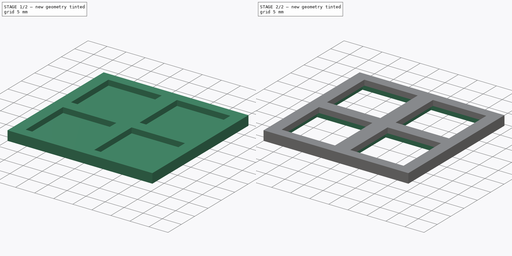
[diagram: build sequence overview — one tinted view per stage of 2, left to right]
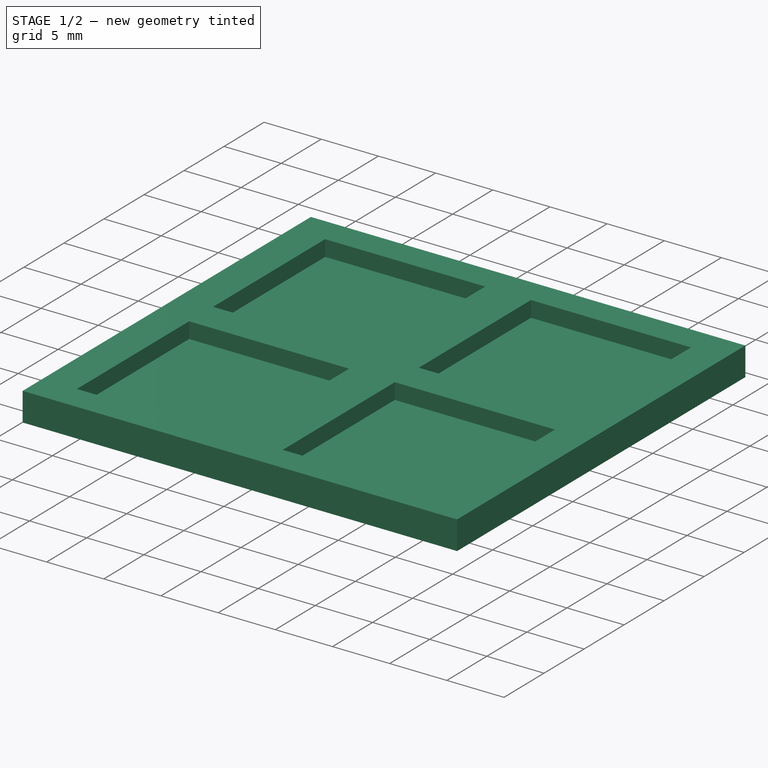
[diagram: stage 1 of 2 — iso view after this stage's code; geometry added in this stage tinted green]
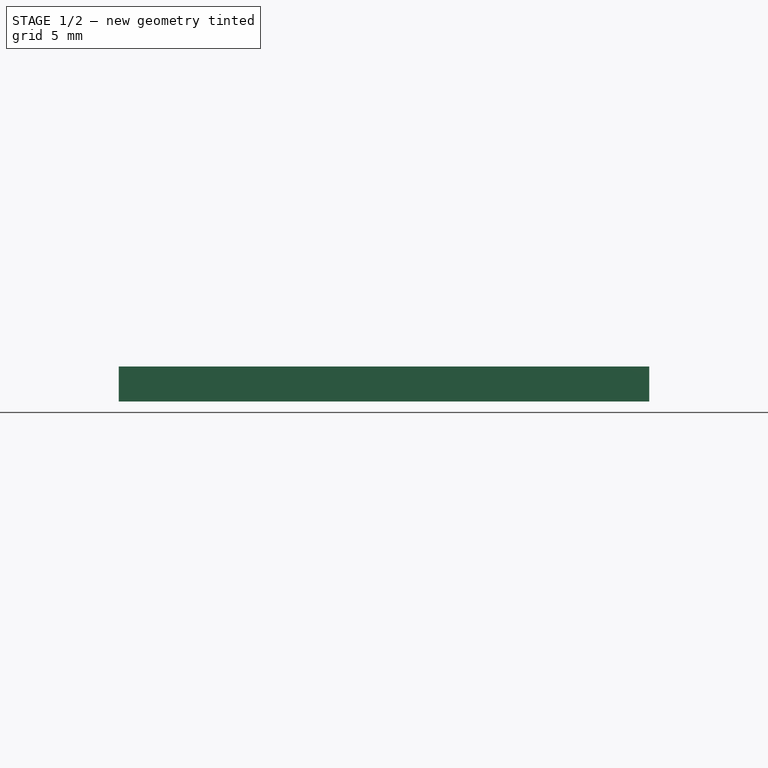
[diagram: stage 1 of 2 — front view after this stage's code; geometry added in this stage tinted green]
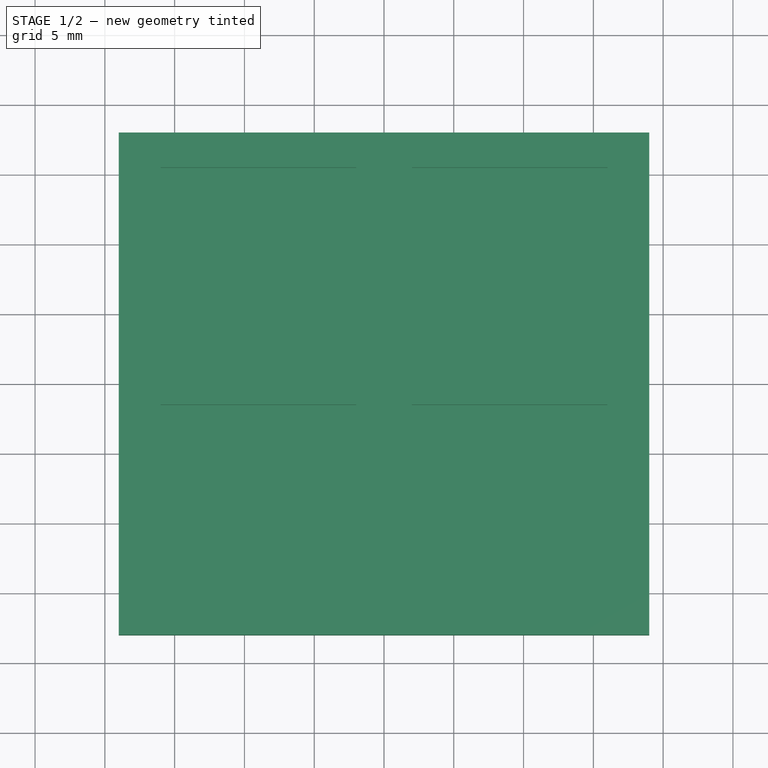
[diagram: stage 1 of 2 — top view after this stage's code; geometry added in this stage tinted green]
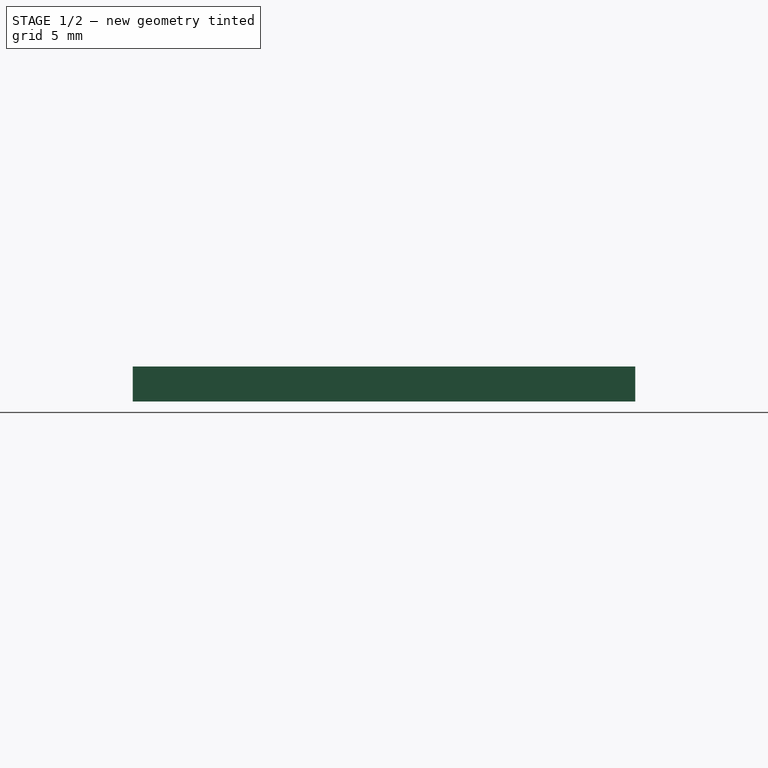
[diagram: stage 1 of 2 — right view after this stage's code; geometry added in this stage tinted green]
FCSTD DOCUMENT  (FreeCAD 0.19R24366 (Git))
Label: kailh_choc_4_button_plate
License: All rights reserved
LicenseURL: http://en.wikipedia.org/wiki/All_rights_reserved
objects: Sketcher::SketchObject×3, PartDesign::Pocket×2, PartDesign::Pad×1, PartDesign::Plane×1, PartDesign::Body×1
note: 11 computed .brp shape members not serialized (recipe doc carries the construction recipe); baked Part::Feature solids carry a one-line shape summary decoded from their .brp

FEATURE [Sketcher::SketchObject] Sketch
  FullyConstrained = true
  MapMode = 5
  Support = -> [XY_Plane]
  sketch-geometry (4):
    g0: LineSegment StartX=-19 StartY=18 StartZ=0 EndX=19 EndY=18 EndZ=0
    g1: LineSegment StartX=19 StartY=18 StartZ=0 EndX=19 EndY=-18 EndZ=0
    g2: LineSegment StartX=19 StartY=-18 StartZ=0 EndX=-19 EndY=-18 EndZ=0
    g3: LineSegment StartX=-19 StartY=-18 StartZ=0 EndX=-19 EndY=18 EndZ=0
  constraints (11):
    c: Coincident(g0,g1)
    c: Coincident(g1,g2)
    c: Coincident(g2,g3)
    c: Coincident(g3,g0)
    c: Horizontal(g0)
    c: Horizontal(g2)
    c: Vertical(g1)
    c: Vertical(g3)
    c: Symmetric(g0,g2,g-1)
    c: Distance(g1) = 36
    c: Distance(g2) = 38
FEATURE [PartDesign::Pad] Pad
  Direction = (1,1,1)
  Length = 2.5
  Length2 = 100
  Profile = -> Sketch
  Type = 0
FEATURE [PartDesign::Plane] DatumPlane
  AttachmentOffset = pos=(0,0,2.5) rot=(0,0,1;0rad)
  Length = 60
  MapMode = 5
  Placement = pos=(0,0,2.5) rot=(0,0,1;0rad)
  ResizeMode = 0
  Support = -> [XY_Plane]
  Width = 60
FEATURE [Sketcher::SketchObject] Sketch001
  FullyConstrained = true
  MapMode = 5
  Placement = pos=(0,0,2.5) rot=(0,0,1;0rad)
  Support = -> [DatumPlane]
  sketch-geometry (20):
    g0: LineSegment StartX=-16 StartY=15.5 StartZ=0 EndX=-2 EndY=15.5 EndZ=0
    g1: LineSegment StartX=-2 StartY=15.5 StartZ=0 EndX=-2 EndY=1.5 EndZ=0
    g2: LineSegment StartX=-2 StartY=1.5 StartZ=0 EndX=-16 EndY=1.5 EndZ=0
    g3: LineSegment StartX=-16 StartY=1.5 StartZ=0 EndX=-16 EndY=15.5 EndZ=0
    g4: LineSegment StartX=2 StartY=15.5 StartZ=0 EndX=16 EndY=15.5 EndZ=0
    g5: LineSegment StartX=16 StartY=15.5 StartZ=0 EndX=16 EndY=1.5 EndZ=0
    g6: LineSegment StartX=16 StartY=1.5 StartZ=0 EndX=2 EndY=1.5 EndZ=0
    g7: LineSegment StartX=2 StartY=1.5 StartZ=0 EndX=2 EndY=15.5 EndZ=0
    g8: LineSegment StartX=2 StartY=-1.5 StartZ=0 EndX=16 EndY=-1.5 EndZ=0
    g9: LineSegment StartX=16 StartY=-1.5 StartZ=0 EndX=16 EndY=-15.5 EndZ=0
    g10: LineSegment StartX=16 StartY=-15.5 StartZ=0 EndX=2 EndY=-15.5 EndZ=0
    g11: LineSegment StartX=2 StartY=-15.5 StartZ=0 EndX=2 EndY=-1.5 EndZ=0
    g12: LineSegment StartX=-16 StartY=-1.5 StartZ=0 EndX=-2 EndY=-1.5 EndZ=0
    g13: LineSegment StartX=-2 StartY=-1.5 StartZ=0 EndX=-2 EndY=-15.5 EndZ=0
    g14: LineSegment StartX=-2 StartY=-15.5 StartZ=0 EndX=-16 EndY=-15.5 EndZ=0
    g15: LineSegment StartX=-16 StartY=-15.5 StartZ=0 EndX=-16 EndY=-1.5 EndZ=0
    g16: LineSegment StartX=-2 StartY=1.5 StartZ=0 EndX=2 EndY=1.5 EndZ=0
    g17: LineSegment StartX=2 StartY=1.5 StartZ=0 EndX=2 EndY=-1.5 EndZ=0
    g18: LineSegment StartX=2 StartY=-1.5 StartZ=0 EndX=-2 EndY=-1.5 EndZ=0
    g19: LineSegment StartX=-2 StartY=-1.5 StartZ=0 EndX=-2 EndY=1.5 EndZ=0
  constraints (55):
    c: Coincident(g0,g1)
    c: Coincident(g1,g2)
    c: Coincident(g2,g3)
    c: Coincident(g3,g0)
    c: Horizontal(g0)
    c: Horizontal(g2)
    c: Vertical(g1)
    c: Vertical(g3)
    c: Coincident(g4,g5)
    c: Coincident(g5,g6)
    c: Coincident(g6,g7)
    c: Coincident(g7,g4)
    c: Horizontal(g4)
    c: Horizontal(g6)
    c: Vertical(g5)
    c: Vertical(g7)
    c: Coincident(g8,g9)
    c: Coincident(g9,g10)
    c: Coincident(g10,g11)
    c: Coincident(g11,g8)
    c: Horizontal(g8)
    c: Horizontal(g10)
    c: Vertical(g9)
    c: Vertical(g11)
    c: Coincident(g12,g13)
    c: Coincident(g13,g14)
    c: Coincident(g14,g15)
    c: Coincident(g15,g12)
    c: Horizontal(g12)
    c: Horizontal(g14)
    c: Vertical(g13)
    c: Vertical(g15)
    c: Equal(g0,g1)
    c: Equal(g1,g4)
    c: Equal(g4,g5)
    c: Equal(g5,g8)
    c: Equal(g8,g9)
    c: Equal(g9,g12)
    c: Equal(g12,g13)
    c: Distance(g5) = 14
    c: Coincident(g16,g17)
    c: Coincident(g17,g18)
    c: Coincident(g18,g19)
    c: Coincident(g19,g16)
    c: Horizontal(g16)
    c: Horizontal(g18)
    c: Vertical(g17)
    c: Vertical(g19)
    c: Symmetric(g18,g16,g-1)
    c: Coincident(g16,g6)
    c: Coincident(g1,g16)
    c: Coincident(g18,g12)
    c: Coincident(g17,g8)
    c: Distance(g17) = 3
    c: Distance(g18) = 4
FEATURE [PartDesign::Pocket] Pocket
  BaseFeature = -> Pad
  Length = 1.4
  Length2 = 100
  Profile = -> Sketch001
  Type = 0
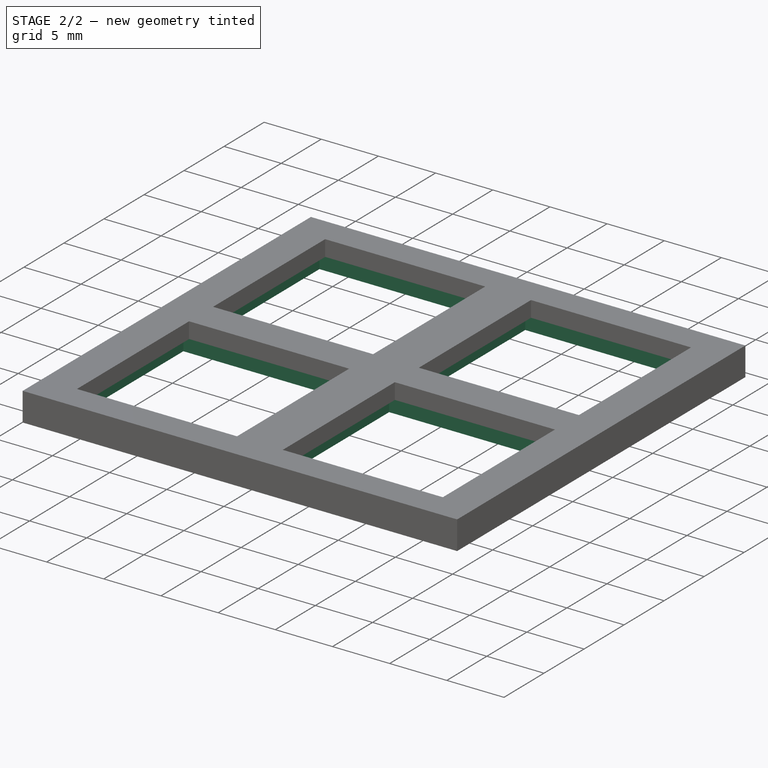
[diagram: stage 2 of 2 — iso view after this stage's code; geometry added in this stage tinted green]
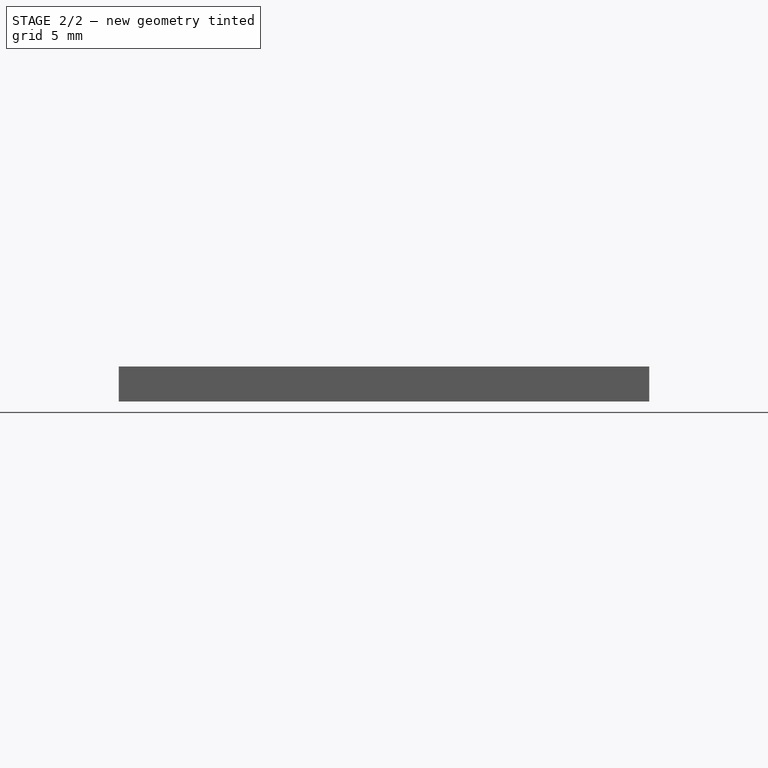
[diagram: stage 2 of 2 — front view after this stage's code; geometry added in this stage tinted green]
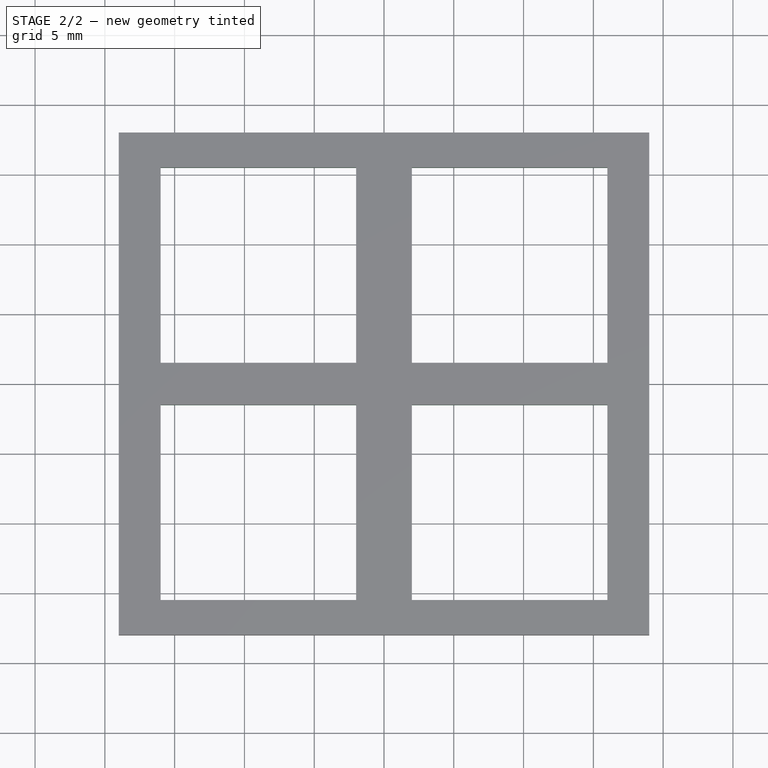
[diagram: stage 2 of 2 — top view after this stage's code; geometry added in this stage tinted green]
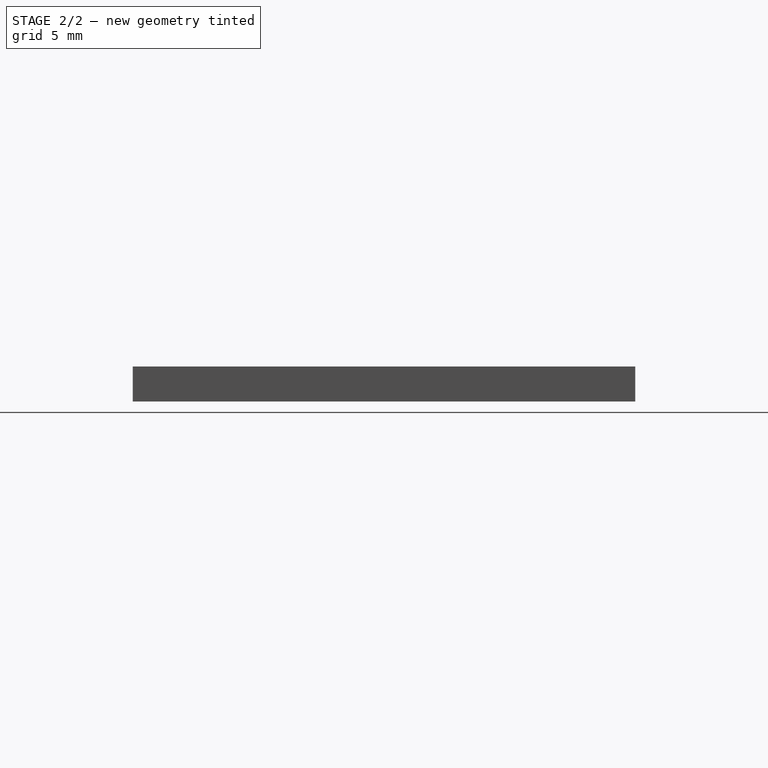
[diagram: stage 2 of 2 — right view after this stage's code; geometry added in this stage tinted green]
FEATURE [Sketcher::SketchObject] Sketch002
  FullyConstrained = true
  MapMode = 5
  Support = -> [XY_Plane]
  sketch-geometry (20):
    g0: LineSegment StartX=-1.5 StartY=1.5 StartZ=0 EndX=1.5 EndY=1.5 EndZ=0
    g1: LineSegment StartX=1.5 StartY=1.5 StartZ=0 EndX=1.5 EndY=-1.5 EndZ=0
    g2: LineSegment StartX=1.5 StartY=-1.5 StartZ=0 EndX=-1.5 EndY=-1.5 EndZ=0
    g3: LineSegment StartX=-1.5 StartY=-1.5 StartZ=0 EndX=-1.5 EndY=1.5 EndZ=0
    g4: LineSegment StartX=1.5 StartY=-1.5 StartZ=0 EndX=16.5 EndY=-1.5 EndZ=0
    g5: LineSegment StartX=16.5 StartY=-1.5 StartZ=0 EndX=16.5 EndY=-15.5 EndZ=0
    g6: LineSegment StartX=16.5 StartY=-15.5 StartZ=0 EndX=1.5 EndY=-15.5 EndZ=0
    g7: LineSegment StartX=1.5 StartY=-15.5 StartZ=0 EndX=1.5 EndY=-1.5 EndZ=0
    g8: LineSegment StartX=1.5 StartY=1.5 StartZ=0 EndX=16.5 EndY=1.5 EndZ=0
    g9: LineSegment StartX=16.5 StartY=1.5 StartZ=0 EndX=16.5 EndY=15.5 EndZ=0
    g10: LineSegment StartX=16.5 StartY=15.5 StartZ=0 EndX=1.5 EndY=15.5 EndZ=0
    g11: LineSegment StartX=1.5 StartY=15.5 StartZ=0 EndX=1.5 EndY=1.5 EndZ=0
    g12: LineSegment StartX=-1.5 StartY=1.5 StartZ=0 EndX=-16.5 EndY=1.5 EndZ=0
    g13: LineSegment StartX=-16.5 StartY=1.5 StartZ=0 EndX=-16.5 EndY=15.5 EndZ=0
    g14: LineSegment StartX=-16.5 StartY=15.5 StartZ=0 EndX=-1.5 EndY=15.5 EndZ=0
    g15: LineSegment StartX=-1.5 StartY=15.5 StartZ=0 EndX=-1.5 EndY=1.5 EndZ=0
    g16: LineSegment StartX=-1.5 StartY=-1.5 StartZ=0 EndX=-16.5 EndY=-1.5 EndZ=0
    g17: LineSegment StartX=-16.5 StartY=-1.5 StartZ=0 EndX=-16.5 EndY=-15.5 EndZ=0
    g18: LineSegment StartX=-16.5 StartY=-15.5 StartZ=0 EndX=-1.5 EndY=-15.5 EndZ=0
    g19: LineSegment StartX=-1.5 StartY=-15.5 StartZ=0 EndX=-1.5 EndY=-1.5 EndZ=0
  constraints (55):
    c: Coincident(g0,g1)
    c: Coincident(g1,g2)
    c: Coincident(g2,g3)
    c: Coincident(g3,g0)
    c: Horizontal(g0)
    c: Horizontal(g2)
    c: Vertical(g1)
    c: Vertical(g3)
    c: Symmetric(g0,g2,g-1)
    c: Distance(g2) = 3
    c: Distance(g1) = 3
    c: Coincident(g4,g5)
    c: Coincident(g5,g6)
    c: Coincident(g6,g7)
    c: Coincident(g7,g4)
    c: Horizontal(g4)
    c: Horizontal(g6)
    c: Vertical(g5)
    c: Vertical(g7)
    c: Coincident(g4,g1)
    c: Coincident(g8,g9)
    c: Coincident(g9,g10)
    c: Coincident(g10,g11)
    c: Coincident(g11,g8)
    c: Horizontal(g8)
    c: Horizontal(g10)
    c: Vertical(g9)
    c: Vertical(g11)
    c: Coincident(g8,g0)
    c: Coincident(g12,g13)
    c: Coincident(g13,g14)
    c: Coincident(g14,g15)
    c: Coincident(g15,g12)
    c: Horizontal(g12)
    c: Horizontal(g14)
    c: Vertical(g13)
    c: Vertical(g15)
    c: Coincident(g12,g0)
    c: Coincident(g16,g17)
    c: Coincident(g17,g18)
    c: Coincident(g18,g19)
    c: Coincident(g19,g16)
    c: Horizontal(g16)
    c: Horizontal(g18)
    c: Vertical(g17)
    c: Vertical(g19)
    c: Coincident(g16,g2)
    c: Distance(g9) = 14
    c: Equal(g13,g17)
    c: Equal(g17,g9)
    c: Equal(g9,g5)
    c: Equal(g18,g12)
    c: Equal(g12,g8)
    c: Equal(g8,g6)
    c: Distance(g6) = 15
FEATURE [PartDesign::Pocket] Pocket001
  BaseFeature = -> Pocket
  Length = 1.1
  Length2 = 100
  Profile = -> Sketch002
  Reversed = true
  Type = 0
  expr: Length = 2.5 - 1.4
FEATURE [PartDesign::Body] Body  label="4keyPlate"
  Group = -> [Sketch,Pad,DatumPlane,Sketch001,Pocket,Sketch002,Pocket001]
  Origin = -> Origin
  Tip = -> Pocket001
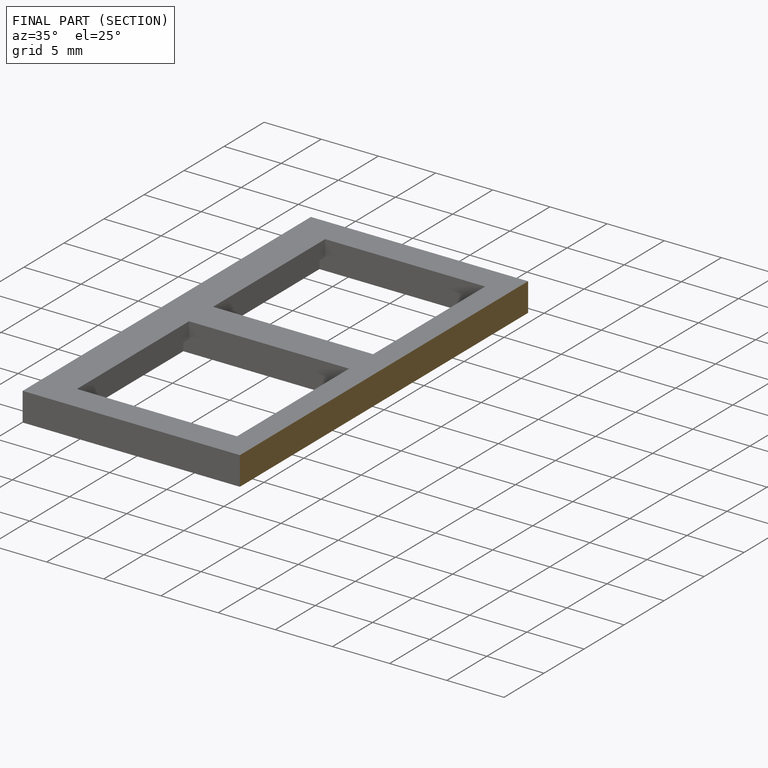
[diagram: finished part — half-section view (interior)]
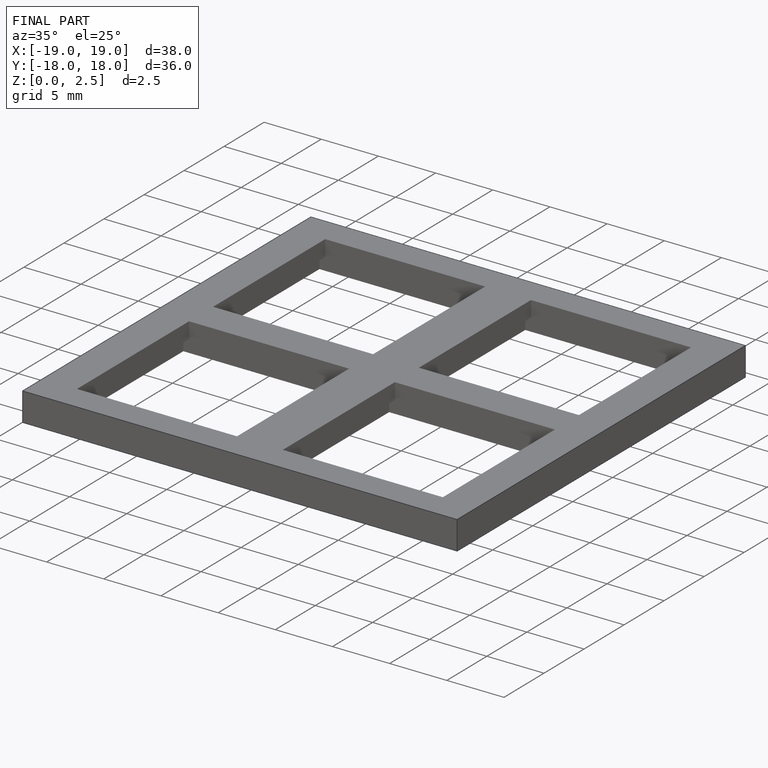
[diagram: finished part — iso view with bounding-box wireframe]
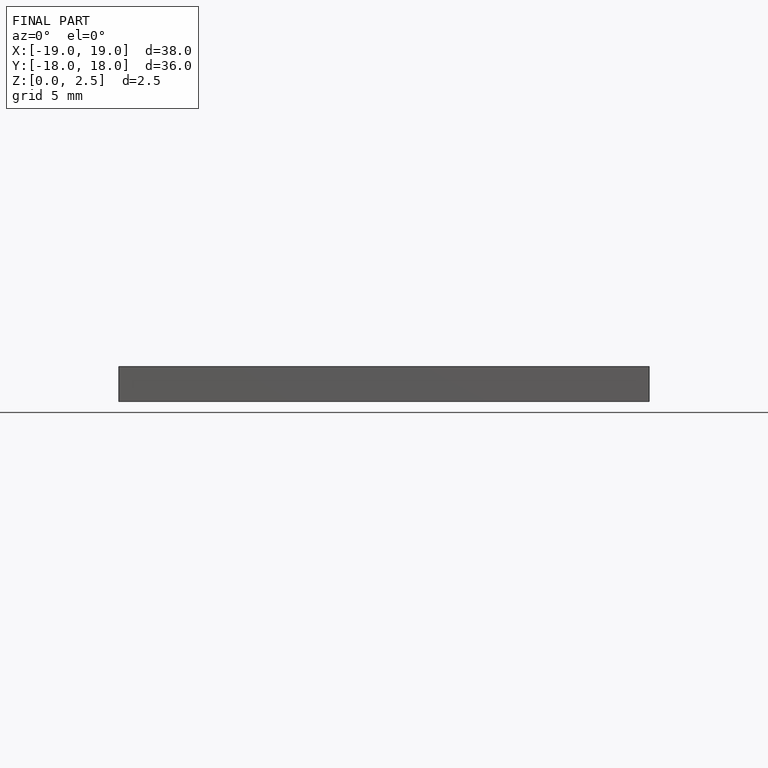
[diagram: finished part — front view with bounding-box wireframe]
